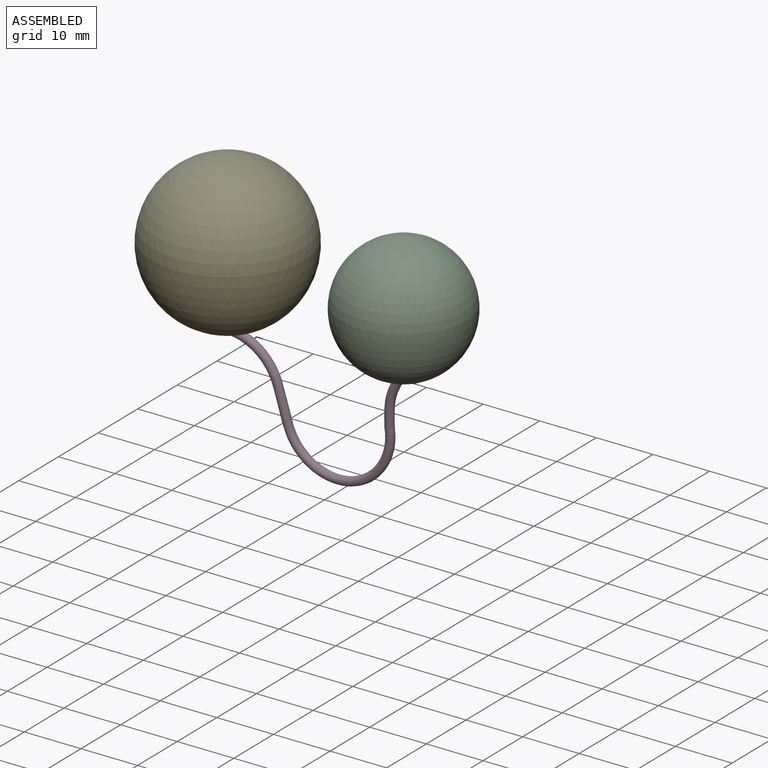
[diagram: assembled view]
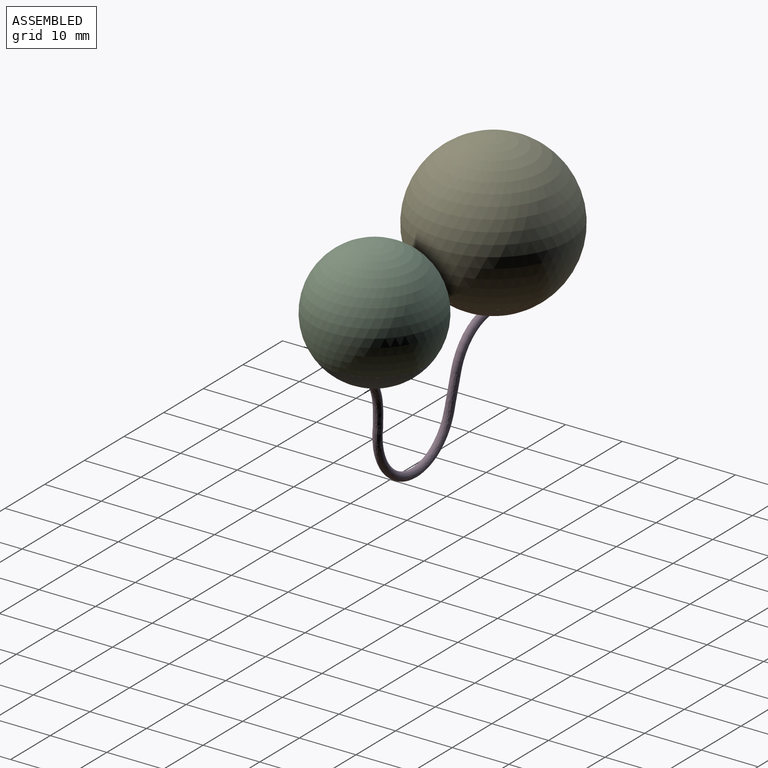
[diagram: assembled view, second angle]
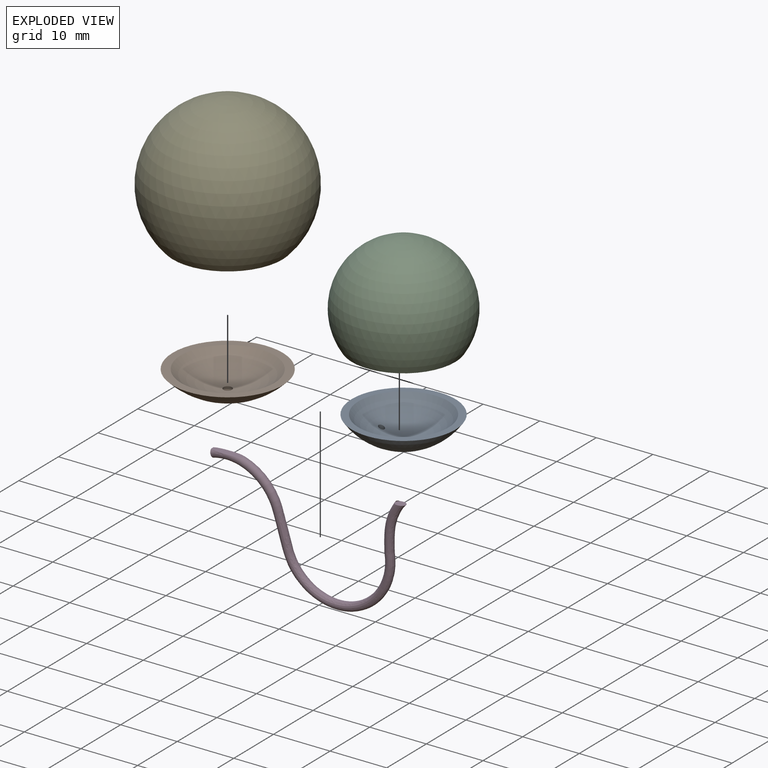
[diagram: exploded view]
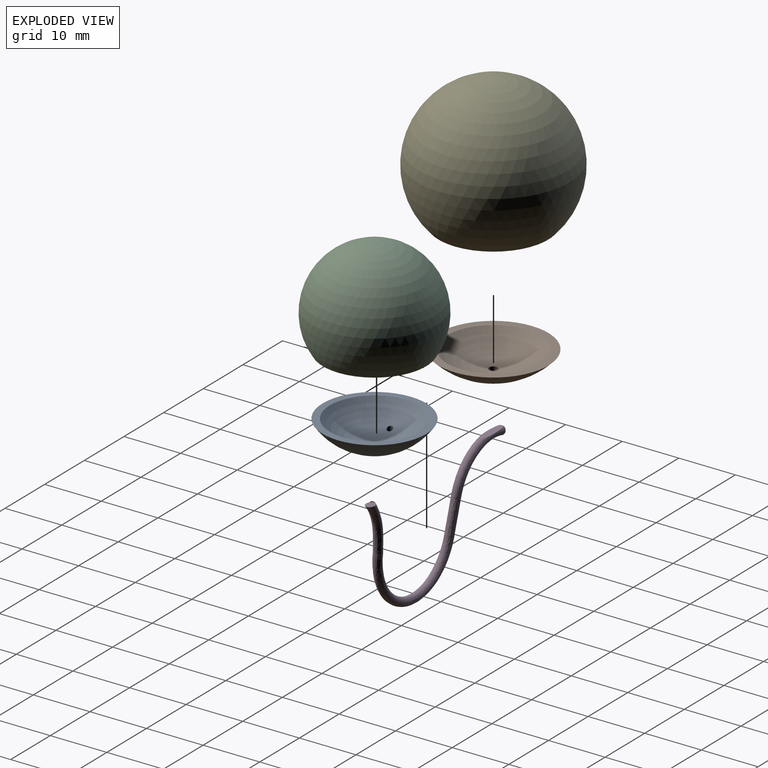
[diagram: exploded view, second angle]
ASSEMBLY  parts=5 mates=3
PART A: 4 faces, bbox 18.3x18.3x4.9 mm
  f0: sphere r=11mm, area 336.6mm2, adj f1,f3
  f1: plane 18.28x18.28mm, normal (0,0,1), area 66mm2, adj f0,f2
  f2: sphere r=10mm, area 243.1mm2, adj f1,f3
  f3: cylinder r=0.51mm len=1.49mm, axis (0,0,1), area 3.5mm2, adj f0,f2
PART B: 5 faces, bbox 19.4x19.4x4 mm
  f0: sphere r=13.5mm, area 337mm2, adj f1,f3
  f1: plane 19.43x19.43mm, normal (0,0,1), area 81.7mm2, adj f0,f2
  f2: sphere r=12.5mm, area 243.6mm2, adj f1,f4
  f3: plane 4.05x4.05mm, normal (0,0,-1), area 11.1mm2, adj f0,f4
  f4: cylinder r=0.76mm len=1.52mm, axis (0,0,1), area 4.1mm2, adj f2,f3
PART C: 3 faces, bbox 22x22x17.1 mm
  f0: sphere r=11mm, area 1183.1mm2, adj f1
  f1: plane 18.28x18.28mm, normal (0,0,-1), area 66mm2, adj f0,f2
  f2: sphere r=10mm, area 1012.7mm2, adj f1
PART D: 7 faces, bbox 35.6x2.7x22.2 mm
  f0: plane 1.5x1.4mm, normal (-0.96,0,-0.28), area 1.8mm2, adj f3,f5
  f1: bspline ~8.78x3.26mm, area 41.2mm2, adj f2,f6
  f2: bspline ~19.58x11.62mm, area 131.5mm2, adj f1,f4
  f3: torus R=9.25mm, axis (0,1,0), area 60.1mm2, adj f0,f4,f5
  f4: bspline ~6x3.14mm, area 27.4mm2, adj f2,f3
  f5: plane 5.63x1.35mm, normal (0,0,1), area 6.4mm2, adj f0,f3
  f6: plane 3.09x2.68mm, normal (0,0,1), area 2.2mm2, adj f1
PART E: 3 faces, bbox 27x27x22.9 mm
  f0: sphere r=13.5mm, area 1940.3mm2, adj f1
  f1: plane 19.43x19.43mm, normal (0,0,-1), area 81.7mm2, adj f0,f2
  f2: sphere r=12.5mm, area 1718.1mm2, adj f1
PLACE A t=(15.56,-20.83,-9.9)mm
PLACE B t=(-15.15,-21.33,-7.44)mm
PLACE C t=(15.56,-20.83,-9.9)mm
PLACE D t=(-14.96,-21.58,-5.45)mm
PLACE E t=(-15.15,-21.33,-7.44)mm
MATE fastened B.f4 <-> D.f5  axis (0,0,-1) through (-15.15,-21.33,-20.78)mm
MATE fastened E.f1 <-> B.f4  axis (0,0,1) through (-15.15,-21.33,-16.81)mm
MATE fastened C.f1 <-> A.f1  axis (0,0,1) through (15.56,-20.83,-16.02)mm
